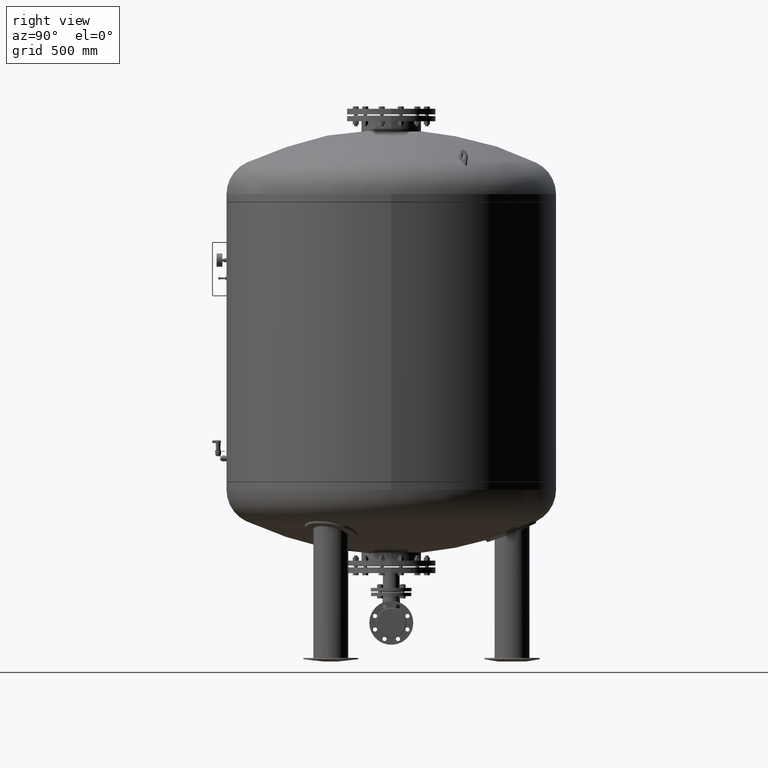
[diagram: clean part render]
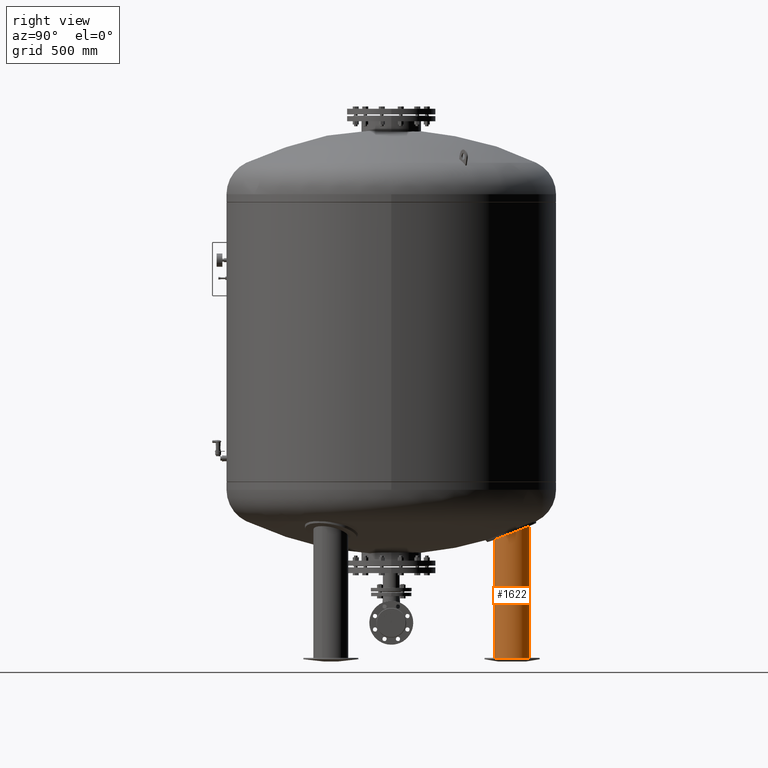
[diagram: same view with one face highlighted and labeled with its STEP entity id]
A machine part, right view. The second image highlights one B-rep face of the part: STEP entity #1622.
In plain terms, the highlighted cylindrical surface (edge-blend (fillet) strip) has radius 79.5 mm, axis along (-0, 0, -1).
Its self-contained STEP definition (entity closure, byte-faithful):
#1212=CARTESIAN_POINT('',(7.004582E-015,629.500000000000000,11.631170282581067));
#1213=VERTEX_POINT('',#1212);
#1214=CARTESIAN_POINT('',(1.187554E-013,629.500000000000680,619.974328976416250));
#1215=VERTEX_POINT('',#1214);
#1216=CARTESIAN_POINT('',(7.004582E-015,629.500000000000000,11.631170282581067));
#1217=DIRECTION('',(0.0,0.0,1.0));
#1218=VECTOR('',#1217,608.343158693835220);
#1219=LINE('',#1216,#1218);
#1220=EDGE_CURVE('',#1213,#1215,#1219,.T.);
#1222=CARTESIAN_POINT('',(-1.246698E-014,470.500000000000000,11.631170282581067));
#1223=VERTEX_POINT('',#1222);
#1231=CARTESIAN_POINT('',(8.113575E-014,470.500000000000000,557.801446445446690));
#1232=VERTEX_POINT('',#1231);
#1233=CARTESIAN_POINT('',(-1.246698E-014,470.500000000000000,11.631170282581067));
#1234=DIRECTION('',(0.0,0.0,1.0));
#1235=VECTOR('',#1234,546.170276162865660);
#1236=LINE('',#1233,#1235);
#1237=EDGE_CURVE('',#1223,#1232,#1236,.T.);
#1319=CARTESIAN_POINT('',(79.496546794574755,549.259022444332120,588.259208461118310));
#1320=VERTEX_POINT('',#1319);
#1321=CARTESIAN_POINT('',(79.496546794574755,549.259022444332120,588.259208461118310));
#1322=CARTESIAN_POINT('',(79.413984862175425,540.401279760728700,584.797146556692160));
#1323=CARTESIAN_POINT('',(77.851266591540124,531.575460725973930,581.360502151041940));
#1324=CARTESIAN_POINT('',(71.208252571481324,513.058214382275310,574.174236989335670));
#1325=CARTESIAN_POINT('',(65.536339505062799,503.676852198831510,570.549958778381670));
#1326=CARTESIAN_POINT('',(51.074552176673606,488.232684979459290,564.600364334074580));
#1327=CARTESIAN_POINT('',(42.669749602980019,482.115720236831750,562.252334812652180));
#1328=CARTESIAN_POINT('',(24.231733499397393,473.643130615666110,559.003880738072780));
#1329=CARTESIAN_POINT('',(14.525158374878808,471.203296638851610,558.070588206412370));
#1330=CARTESIAN_POINT('',(3.038514087384458,470.543488982217640,557.818088260262240));
#1331=CARTESIAN_POINT('',(1.518216679411000,470.500000000000000,557.801446445446690));
#1332=CARTESIAN_POINT('',(8.113575E-014,470.500000000000000,557.801446445446690));
#1333=B_SPLINE_CURVE_WITH_KNOTS('',3,(#1321,#1322,#1323,#1324,#1325,#1326,#1327,#1328,#1329,#1330,#1331,#1332),.UNSPECIFIED.,.F.,.U.,(4,2,2,2,2,4),(13.058196146459986,15.908544671985489,19.326182717890447,22.493256912797680,25.489178793934588,25.946274642103887),.UNSPECIFIED.);
#1334=EDGE_CURVE('',#1320,#1232,#1333,.T.);
#1585=CARTESIAN_POINT('',(1.134724E-013,629.500000000000000,619.974328976416360));
#1586=CARTESIAN_POINT('',(9.592202166925047,629.499999999999770,619.974328976416020));
#1587=CARTESIAN_POINT('',(19.057045087347205,627.764875279292370,619.280247607236110));
#1588=CARTESIAN_POINT('',(37.029118879032914,621.014758583427350,616.585819491894090));
#1589=CARTESIAN_POINT('',(45.297994220543920,616.016537504471100,614.592514188904490));
#1590=CARTESIAN_POINT('',(60.037998727795397,603.087412912687230,609.453155597640030));
#1591=CARTESIAN_POINT('',(66.211195741385055,595.101102273712850,606.286372499794770));
#1592=CARTESIAN_POINT('',(75.609934501561952,576.790586001446740,599.055880090259170));
#1593=CARTESIAN_POINT('',(78.493118529778243,566.452340789569350,594.989155554557560));
#1594=CARTESIAN_POINT('',(79.444984341154537,553.699965758499730,589.995750597807050));
#1595=CARTESIAN_POINT('',(79.517234166208439,551.478488600296260,589.126690109795050));
#1596=CARTESIAN_POINT('',(79.496546794574755,549.259022444332120,588.259208461118310));
#1597=B_SPLINE_CURVE_WITH_KNOTS('',3,(#1585,#1586,#1587,#1588,#1589,#1590,#1591,#1592,#1593,#1594,#1595,#1596),.UNSPECIFIED.,.F.,.U.,(4,2,2,2,2,4),(0.0,2.877660650077480,5.813761654146234,8.951189755024860,12.343990246483170,13.058196146459986),.UNSPECIFIED.);
#1598=EDGE_CURVE('',#1215,#1320,#1597,.T.);
#1604=CARTESIAN_POINT('',(2.905276E-015,550.0,15.815585141290533));
#1605=DIRECTION('',(-1.836970E-016,1.124820E-032,-1.0));
#1606=DIRECTION('',(0.0,1.0,0.0));
#1607=AXIS2_PLACEMENT_3D('',#1604,#1605,#1606);
#1608=CYLINDRICAL_SURFACE('',#1607,79.500000000000000);
#1609=ORIENTED_EDGE('',*,*,#1220,.T.);
#1610=ORIENTED_EDGE('',*,*,#1598,.T.);
#1611=ORIENTED_EDGE('',*,*,#1334,.T.);
#1612=ORIENTED_EDGE('',*,*,#1237,.F.);
#1613=CARTESIAN_POINT('',(2.136611E-015,550.0,11.631170282581067));
#1614=DIRECTION('',(0.0,0.0,-1.0));
#1615=DIRECTION('',(0.0,1.0,0.0));
#1616=AXIS2_PLACEMENT_3D('',#1613,#1614,#1615);
#1617=CIRCLE('',#1616,79.500000000000000);
#1618=EDGE_CURVE('',#1213,#1223,#1617,.T.);
#1619=ORIENTED_EDGE('',*,*,#1618,.F.);
#1620=EDGE_LOOP('',(#1609,#1610,#1611,#1612,#1619));
#1621=FACE_OUTER_BOUND('',#1620,.T.);
#1622=ADVANCED_FACE('',(#1621),#1608,.T.);